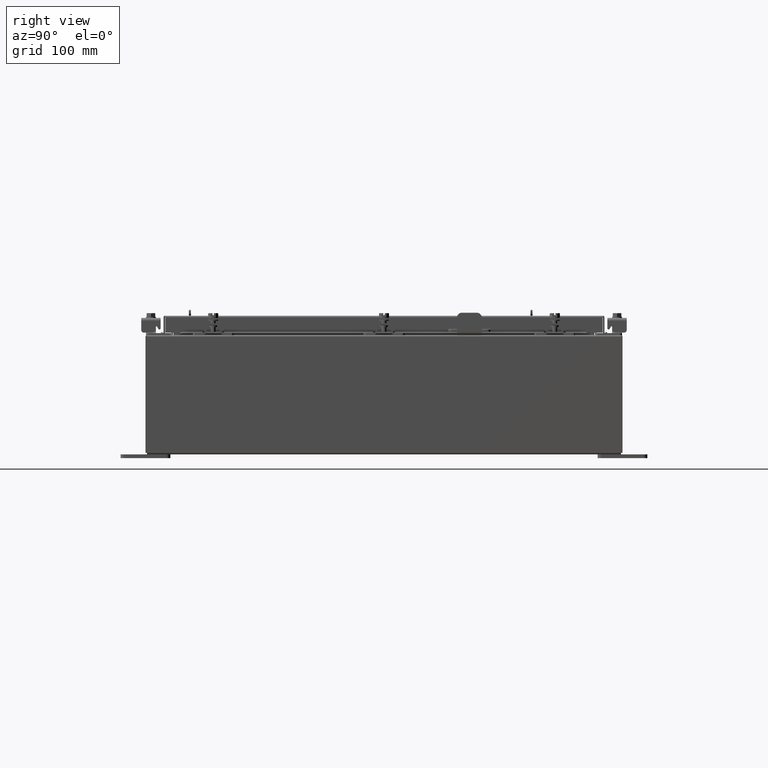
[diagram: clean part render]
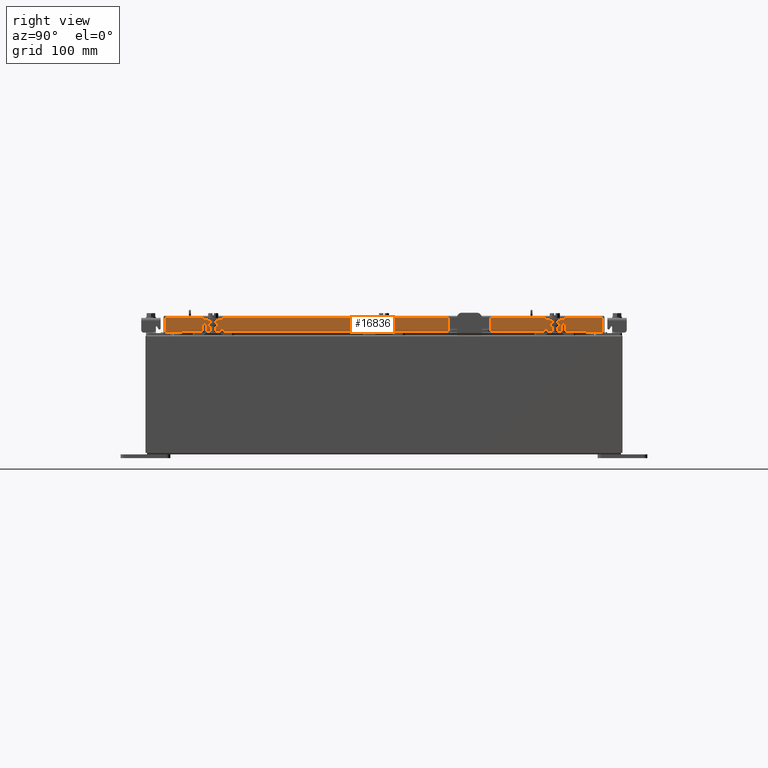
[diagram: same view with one face highlighted and labeled with its STEP entity id]
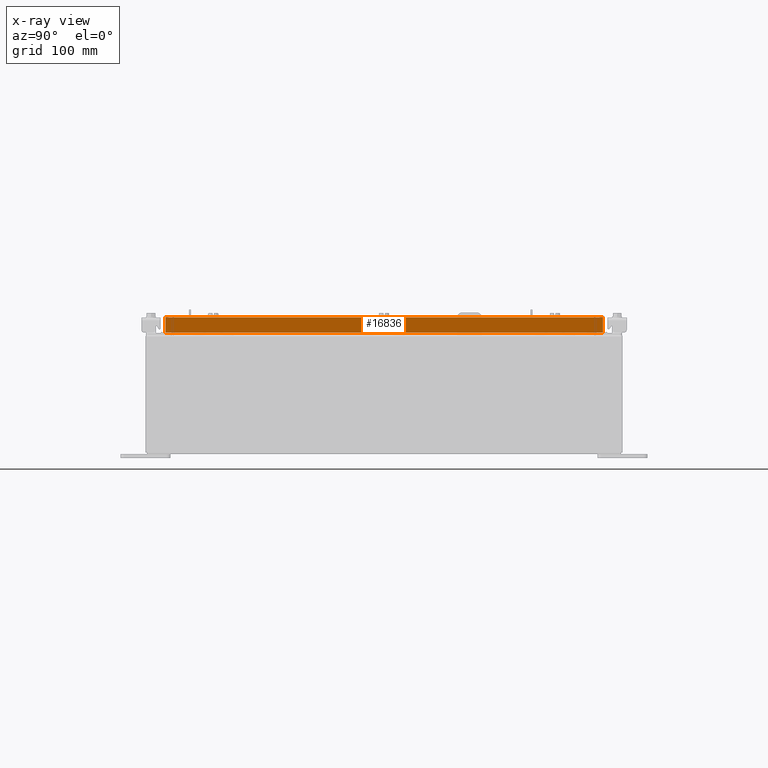
[diagram: x-ray of the same camera — body ghosted, the highlighted face saturated]
A machine part, right view. The second image highlights one B-rep face of the part: STEP entity #16836.
The next image is the same camera in x-ray: the body ghosted, the highlighted face saturated — about 0% of this face is hidden behind the body in this view.
In plain terms, the highlighted planar face has unit normal (1, 0, 0).
Its self-contained STEP definition (entity closure, byte-faithful):
#1290 = AXIS2_PLACEMENT_3D ( 'NONE', #16650, #9793, #21975 ) ;
#2502 = DIRECTION ( 'NONE',  ( 0.0000000000000000000, -1.000000000000000000, 0.0000000000000000000 ) ) ;
#2646 = VERTEX_POINT ( 'NONE', #22321 ) ;
#3126 = EDGE_CURVE ( 'NONE', #4004, #7618, #17247, .T. ) ;
#4004 = VERTEX_POINT ( 'NONE', #12369 ) ;
#4286 = LINE ( 'NONE', #13434, #13041 ) ;
#4444 = DIRECTION ( 'NONE',  ( 0.0000000000000000000, -1.000000000000000000, 0.0000000000000000000 ) ) ;
#5358 = ORIENTED_EDGE ( 'NONE', *, *, #3126, .T. ) ;
#7001 = VECTOR ( 'NONE', #13493, 39.37007874015748100 ) ;
#7351 = VECTOR ( 'NONE', #2502, 39.37007874015748100 ) ;
#7618 = VERTEX_POINT ( 'NONE', #12399 ) ;
#8094 = VERTEX_POINT ( 'NONE', #11909 ) ;
#8963 = CARTESIAN_POINT ( 'NONE',  ( 11.09399999999999400, 11.00515786437626400, 1.081811805491048200E-013 ) ) ;
#9377 = EDGE_CURVE ( 'NONE', #2646, #15734, #17939, .T. ) ;
#9793 = DIRECTION ( 'NONE',  ( 1.000000000000000000, 0.0000000000000000000, 2.818880942772360100E-015 ) ) ;
#10735 = EDGE_LOOP ( 'NONE', ( #20151, #12441, #10951, #20721, #5358, #14647 ) ) ;
#10951 = ORIENTED_EDGE ( 'NONE', *, *, #14236, .F. ) ;
#11688 = VECTOR ( 'NONE', #13308, 39.37007874015748100 ) ;
#11909 = CARTESIAN_POINT ( 'NONE',  ( 11.09399999999998500, 10.25515786437627200, -0.8500000000000020900 ) ) ;
#12369 = CARTESIAN_POINT ( 'NONE',  ( 11.09399999999999800, 11.00515786437626900, -0.8499999999999999800 ) ) ;
#12399 = CARTESIAN_POINT ( 'NONE',  ( 11.09399999999999400, 11.00515786437626400, -0.08770000000000026400 ) ) ;
#12441 = ORIENTED_EDGE ( 'NONE', *, *, #14908, .F. ) ;
#13041 = VECTOR ( 'NONE', #18659, 39.37007874015748100 ) ;
#13162 = CARTESIAN_POINT ( 'NONE',  ( 11.09399999999999800, -11.09400000000000100, -0.8499999999999999800 ) ) ;
#13176 = VECTOR ( 'NONE', #21128, 39.37007874015748100 ) ;
#13308 = DIRECTION ( 'NONE',  ( 0.0000000000000000000, -1.000000000000000000, 0.0000000000000000000 ) ) ;
#13434 = CARTESIAN_POINT ( 'NONE',  ( 11.09399999999999800, -11.09400000000000100, -0.8499999999999999800 ) ) ;
#13493 = DIRECTION ( 'NONE',  ( -2.818880942772360100E-015, -6.982962677686267500E-015, 1.000000000000000000 ) ) ;
#14167 = EDGE_CURVE ( 'NONE', #4004, #8094, #17973, .T. ) ;
#14236 = EDGE_CURVE ( 'NONE', #8094, #19199, #20967, .T. ) ;
#14555 = CARTESIAN_POINT ( 'NONE',  ( 11.09399999999999400, -11.00515786437626900, -0.08770000000000026400 ) ) ;
#14647 = ORIENTED_EDGE ( 'NONE', *, *, #19213, .T. ) ;
#14716 = CARTESIAN_POINT ( 'NONE',  ( 11.09399999999999400, 0.0000000000000000000, -0.08770000000000026400 ) ) ;
#14908 = EDGE_CURVE ( 'NONE', #19199, #2646, #4286, .T. ) ;
#15253 = FACE_OUTER_BOUND ( 'NONE', #10735, .T. ) ;
#15734 = VERTEX_POINT ( 'NONE', #14555 ) ;
#16628 = LINE ( 'NONE', #14716, #7351 ) ;
#16650 = CARTESIAN_POINT ( 'NONE',  ( 11.09399999999999400, 0.0000000000000000000, 3.168943672650545400E-014 ) ) ;
#16836 = ADVANCED_FACE ( 'NONE', ( #15253 ), #20238, .T. ) ;
#17247 = LINE ( 'NONE', #8963, #13176 ) ;
#17939 = LINE ( 'NONE', #22173, #7001 ) ;
#17973 = LINE ( 'NONE', #13162, #18512 ) ;
#18512 = VECTOR ( 'NONE', #4444, 39.37007874015748100 ) ;
#18659 = DIRECTION ( 'NONE',  ( 0.0000000000000000000, -1.000000000000000000, 0.0000000000000000000 ) ) ;
#19199 = VERTEX_POINT ( 'NONE', #19888 ) ;
#19213 = EDGE_CURVE ( 'NONE', #7618, #15734, #16628, .T. ) ;
#19888 = CARTESIAN_POINT ( 'NONE',  ( 11.09399999999998500, -10.25515786437626400, -0.8500000000000020900 ) ) ;
#20151 = ORIENTED_EDGE ( 'NONE', *, *, #9377, .F. ) ;
#20238 = PLANE ( 'NONE',  #1290 ) ;
#20721 = ORIENTED_EDGE ( 'NONE', *, *, #14167, .F. ) ;
#20967 = LINE ( 'NONE', #22065, #11688 ) ;
#21128 = DIRECTION ( 'NONE',  ( -2.818880942772360100E-015, -6.982962677686267500E-015, 1.000000000000000000 ) ) ;
#21975 = DIRECTION ( 'NONE',  ( 2.818880942772360100E-015, 0.0000000000000000000, -1.000000000000000000 ) ) ;
#22065 = CARTESIAN_POINT ( 'NONE',  ( 11.09399999999998500, 10.25515786437627200, -0.8500000000000020900 ) ) ;
#22173 = CARTESIAN_POINT ( 'NONE',  ( 11.09399999999999400, -11.00515786437626900, -0.07470000000000015500 ) ) ;
#22321 = CARTESIAN_POINT ( 'NONE',  ( 11.09399999999999800, -11.00515786437626400, -0.8499999999999999800 ) ) ;